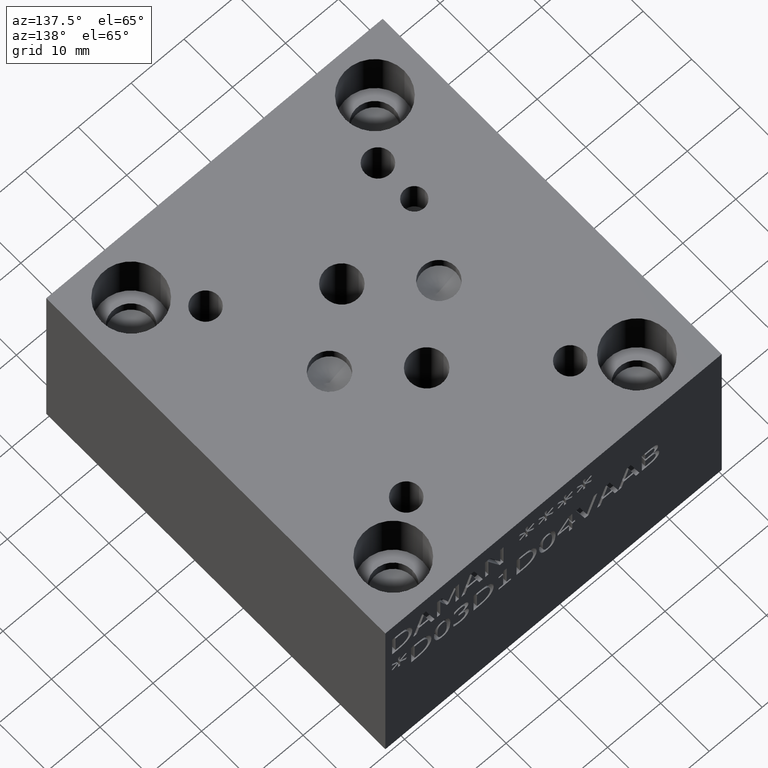
[diagram: clean part render]
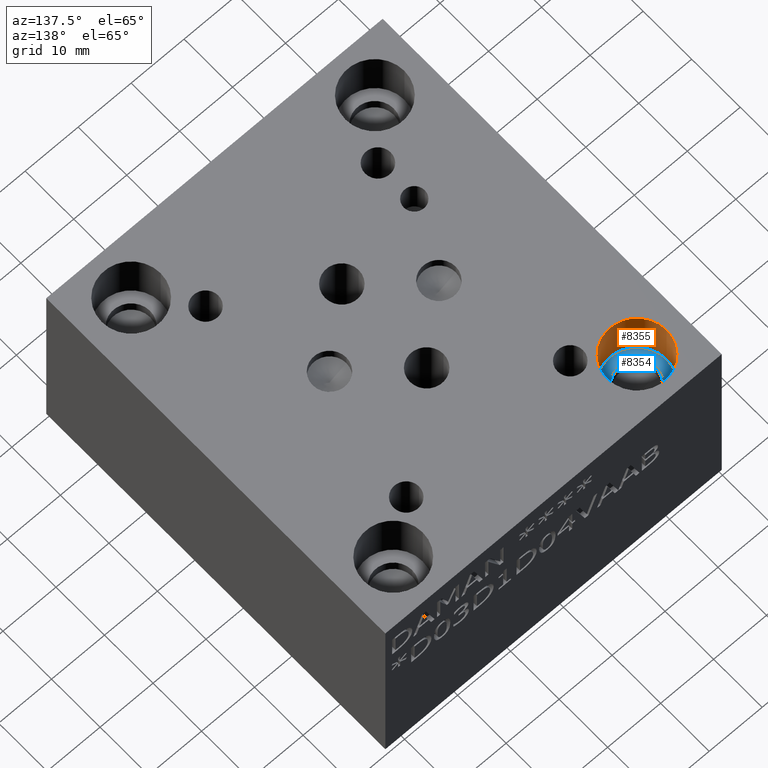
[diagram: same view with the hole feature highlighted: cylindrical wall and planar end face, labeled with their STEP entity ids]
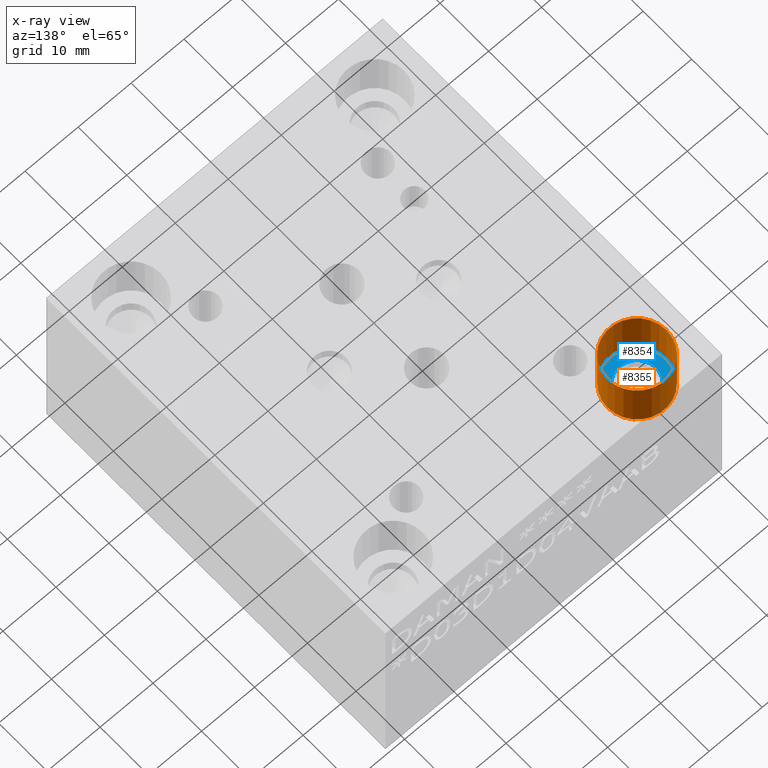
[diagram: x-ray of the same camera — body ghosted, the hole faces saturated]
A machine part, auxiliary view. The highlighted faces form one hole feature of diameter 11.1252 mm: the cylindrical wall (entity #8355, orange) and its adjacent planar end face (entity #8354, blue) — they share a circular edge in the B-rep.
The next image is the same camera in x-ray (body ghosted, the hole faces saturated) — the bore reads through the body.
Wall:
#85=CIRCLE('',#8757,5.5626);
#86=CIRCLE('',#8758,5.5626);
#88=CIRCLE('',#8761,5.5626);
#89=CIRCLE('',#8762,5.5626);
#168=CYLINDRICAL_SURFACE('',#8760,5.5626);
#910=FACE_OUTER_BOUND('',#1375,.T.);
#1375=EDGE_LOOP('',(#7104,#7105,#7106,#7107,#7108,#7109));
#2251=LINE('',#13931,#3092);
#3092=VECTOR('',#10375,5.5626);
#3834=VERTEX_POINT('',#13920);
#3835=VERTEX_POINT('',#13921);
#3837=VERTEX_POINT('',#13927);
#3838=VERTEX_POINT('',#13928);
#4953=EDGE_CURVE('',#3834,#3835,#85,.T.);
#4954=EDGE_CURVE('',#3835,#3834,#86,.T.);
#4956=EDGE_CURVE('',#3837,#3838,#88,.T.);
#4957=EDGE_CURVE('',#3838,#3837,#89,.T.);
#4958=EDGE_CURVE('',#3838,#3835,#2251,.T.);
#7104=ORIENTED_EDGE('',*,*,#4956,.F.);
#7105=ORIENTED_EDGE('',*,*,#4957,.F.);
#7106=ORIENTED_EDGE('',*,*,#4958,.T.);
#7107=ORIENTED_EDGE('',*,*,#4953,.F.);
#7108=ORIENTED_EDGE('',*,*,#4954,.F.);
#7109=ORIENTED_EDGE('',*,*,#4958,.F.);
#8355=ADVANCED_FACE('',(#910),#168,.F.);
#8757=AXIS2_PLACEMENT_3D('',#13922,#10363,#10364);
#8758=AXIS2_PLACEMENT_3D('',#13923,#10365,#10366);
#8760=AXIS2_PLACEMENT_3D('',#13926,#10369,#10370);
#8761=AXIS2_PLACEMENT_3D('',#13929,#10371,#10372);
#8762=AXIS2_PLACEMENT_3D('',#13930,#10373,#10374);
#10363=DIRECTION('center_axis',(0.,0.,1.));
#10364=DIRECTION('ref_axis',(1.,0.,0.));
#10365=DIRECTION('center_axis',(0.,0.,1.));
#10366=DIRECTION('ref_axis',(1.,0.,0.));
#10369=DIRECTION('center_axis',(0.,0.,1.));
#10370=DIRECTION('ref_axis',(1.,0.,0.));
#10371=DIRECTION('center_axis',(0.,0.,-1.));
#10372=DIRECTION('ref_axis',(1.,0.,0.));
#10373=DIRECTION('center_axis',(0.,0.,-1.));
#10374=DIRECTION('ref_axis',(1.,0.,0.));
#10375=DIRECTION('',(0.,0.,-1.));
#13920=CARTESIAN_POINT('',(14.29385,61.9252,28.575));
#13921=CARTESIAN_POINT('',(3.16865,61.9252,28.575));
#13922=CARTESIAN_POINT('Origin',(8.73125,61.9252,28.575));
#13923=CARTESIAN_POINT('Origin',(8.73125,61.9252,28.575));
#13926=CARTESIAN_POINT('Origin',(8.73125,61.9252,33.3375));
#13927=CARTESIAN_POINT('',(14.29385,61.9252,38.1));
#13928=CARTESIAN_POINT('',(3.16865,61.9252,38.1));
#13929=CARTESIAN_POINT('Origin',(8.73125,61.9252,38.1));
#13930=CARTESIAN_POINT('Origin',(8.73125,61.9252,38.1));
#13931=CARTESIAN_POINT('',(3.16865,61.9252,33.3375));
End face:
#85=CIRCLE('',#8757,5.5626);
#86=CIRCLE('',#8758,5.5626);
#87=CIRCLE('',#8759,3.5687);
#498=FACE_BOUND('',#1374,.T.);
#909=FACE_OUTER_BOUND('',#1373,.T.);
#1373=EDGE_LOOP('',(#7101,#7102));
#1374=EDGE_LOOP('',(#7103));
#3834=VERTEX_POINT('',#13920);
#3835=VERTEX_POINT('',#13921);
#3836=VERTEX_POINT('',#13924);
#4953=EDGE_CURVE('',#3834,#3835,#85,.T.);
#4954=EDGE_CURVE('',#3835,#3834,#86,.T.);
#4955=EDGE_CURVE('',#3836,#3836,#87,.T.);
#7101=ORIENTED_EDGE('',*,*,#4953,.T.);
#7102=ORIENTED_EDGE('',*,*,#4954,.T.);
#7103=ORIENTED_EDGE('',*,*,#4955,.F.);
#7619=PLANE('',#8756);
#8354=ADVANCED_FACE('',(#909,#498),#7619,.T.);
#8756=AXIS2_PLACEMENT_3D('',#13919,#10361,#10362);
#8757=AXIS2_PLACEMENT_3D('',#13922,#10363,#10364);
#8758=AXIS2_PLACEMENT_3D('',#13923,#10365,#10366);
#8759=AXIS2_PLACEMENT_3D('',#13925,#10367,#10368);
#10361=DIRECTION('center_axis',(0.,0.,1.));
#10362=DIRECTION('ref_axis',(1.,0.,0.));
#10363=DIRECTION('center_axis',(0.,0.,1.));
#10364=DIRECTION('ref_axis',(1.,0.,0.));
#10365=DIRECTION('center_axis',(0.,0.,1.));
#10366=DIRECTION('ref_axis',(1.,0.,0.));
#10367=DIRECTION('center_axis',(0.,0.,1.));
#10368=DIRECTION('ref_axis',(1.,0.,0.));
#13919=CARTESIAN_POINT('Origin',(8.73125,61.9252,28.575));
#13920=CARTESIAN_POINT('',(14.29385,61.9252,28.575));
#13921=CARTESIAN_POINT('',(3.16865,61.9252,28.575));
#13922=CARTESIAN_POINT('Origin',(8.73125,61.9252,28.575));
#13923=CARTESIAN_POINT('Origin',(8.73125,61.9252,28.575));
#13924=CARTESIAN_POINT('',(5.16255,61.9252,28.575));
#13925=CARTESIAN_POINT('Origin',(8.73125,61.9252,28.575));